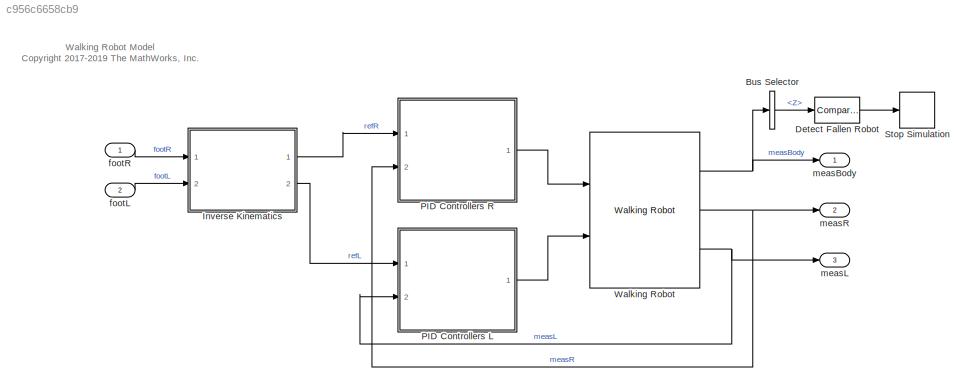
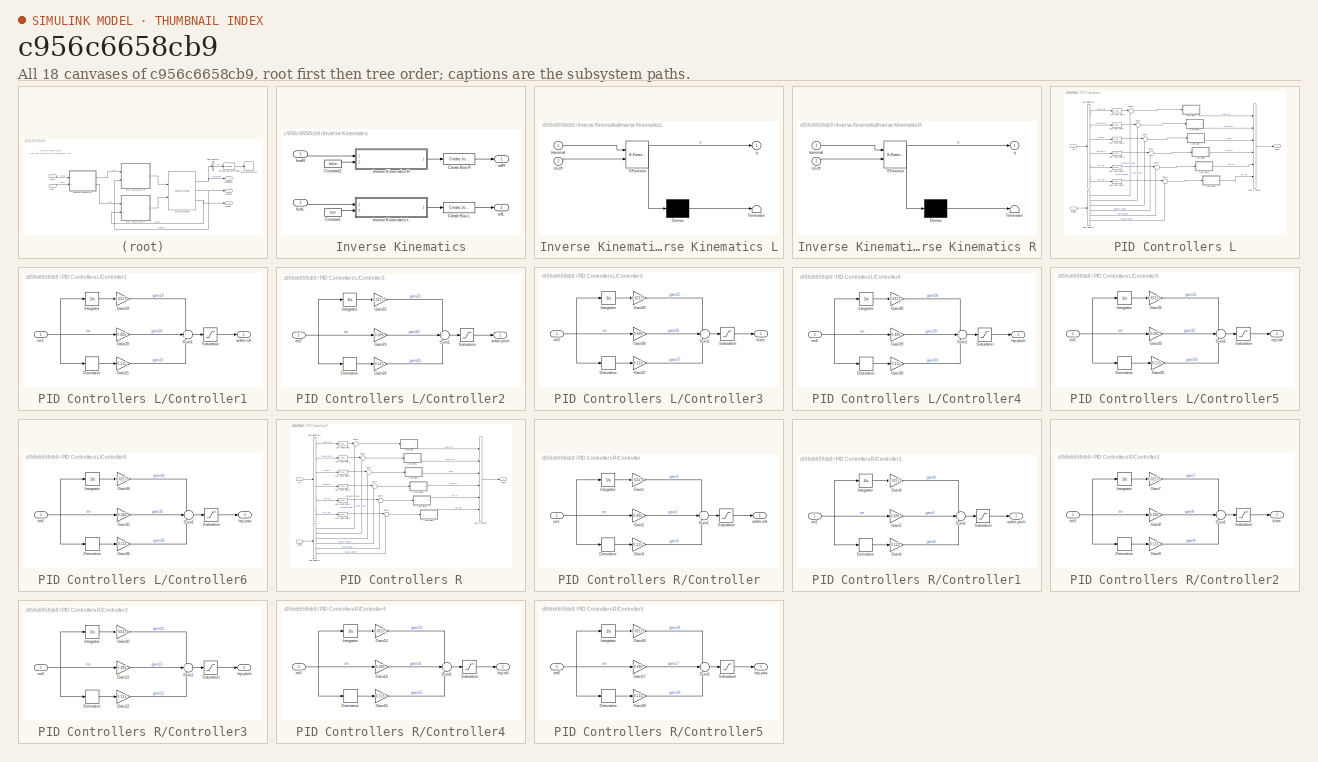
[diagram: thumbnail index - all 18 canvases of the model, root first then tree order]
MODEL slx_c956c6658cb9
KIND model
CONFIG AbsTol = auto
CONFIG EnableMultiTasking = off
CONFIG FixedStep = auto
CONFIG MaxStep = auto
CONFIG MinStep = auto
CONFIG PreLoadFcn = robotParameters\nload('defaultsimulationinputs.mat') 
CONFIG RelTol = 1e-3
CONFIG SampleTimeConstraint = Unconstrained
CONFIG Solver = VariableStepAuto
CONFIG SolverName = VariableStepAuto
CONFIG StartTime = 0.0
CONFIG StopTime = 10.0
BLOCK [BusSelector] Bus Selector
  OutputSignals = Z
  Ports = [1, 1]
BLOCK [Reference] Detect Fallen Robot  REF=simulink/Logic and Bit
Operations/Compare
To Constant
  Ports = [1, 1]
  SourceBlock = simulink/Logic and Bit\nOperations/Compare\nTo Constant
  SourceProductBaseCode = SL
  SourceType = Compare To Constant
BLOCK [SubSystem] Inverse Kinematics
  Ports = [2, 2]
  RequestExecContextInheritance = off
BLOCK [Constant] Inverse Kinematics/Constant
  Value = true
BLOCK [Constant] Inverse Kinematics/Constant2
  Value = false
BLOCK [Reference] Inverse Kinematics/Create Bus L  REF=walkingRobotUtils/Create Joint Angle Bus
  Ports = [1, 1]
  SourceBlock = walkingRobotUtils/Create Joint Angle Bus
  SourceType = SubSystem
BLOCK [Reference] Inverse Kinematics/Create Bus R  REF=walkingRobotUtils/Create Joint Angle Bus
  Ports = [1, 1]
  SourceBlock = walkingRobotUtils/Create Joint Angle Bus
  SourceType = SubSystem
BLOCK [SubSystem] Inverse Kinematics/Inverse Kinematics L
  ErrorFcn = Stateflow.Translate.translate
  PermitHierarchicalResolution = ExplicitOnly
  Ports = [2, 1]
  RequestExecContextInheritance = off
  SFBlockType = MATLAB Function
  TreatAsAtomicUnit = on
BLOCK [Demux] Inverse Kinematics/Inverse Kinematics L/ Demux 
  Outputs = 1
  Ports = [1, 1]
BLOCK [S-Function] Inverse Kinematics/Inverse Kinematics L/ SFunction 
  EnableBusSupport = on
  FunctionName = sf_sfun
  PortCounts = [2 2]
  Ports = [2, 2]
  SFcnIsStateOwnerBlock = off
  SFunctionDeploymentMode = off
  Tag = Stateflow S-Function 1
BLOCK [Terminator] Inverse Kinematics/Inverse Kinematics L/ Terminator 
BLOCK [Inport] Inverse Kinematics/Inverse Kinematics L/isLeft
  Port = 2
BLOCK [Outport] Inverse Kinematics/Inverse Kinematics L/q
BLOCK [Inport] Inverse Kinematics/Inverse Kinematics L/transmat
BLOCK [SubSystem] Inverse Kinematics/Inverse Kinematics R
  ErrorFcn = Stateflow.Translate.translate
  PermitHierarchicalResolution = ExplicitOnly
  Ports = [2, 1]
  RequestExecContextInheritance = off
  SFBlockType = MATLAB Function
  TreatAsAtomicUnit = on
BLOCK [Demux] Inverse Kinematics/Inverse Kinematics R/ Demux 
  Outputs = 1
  Ports = [1, 1]
BLOCK [S-Function] Inverse Kinematics/Inverse Kinematics R/ SFunction 
  EnableBusSupport = on
  FunctionName = sf_sfun
  PortCounts = [2 2]
  Ports = [2, 2]
  SFcnIsStateOwnerBlock = off
  SFunctionDeploymentMode = off
  Tag = Stateflow S-Function 2
BLOCK [Terminator] Inverse Kinematics/Inverse Kinematics R/ Terminator 
BLOCK [Inport] Inverse Kinematics/Inverse Kinematics R/isLeft
  Port = 2
BLOCK [Outport] Inverse Kinematics/Inverse Kinematics R/q
BLOCK [Inport] Inverse Kinematics/Inverse Kinematics R/transmat
BLOCK [Inport] Inverse Kinematics/footL
  Port = 2
BLOCK [Inport] Inverse Kinematics/footR
BLOCK [Outport] Inverse Kinematics/refL
  Port = 2
BLOCK [Outport] Inverse Kinematics/refR
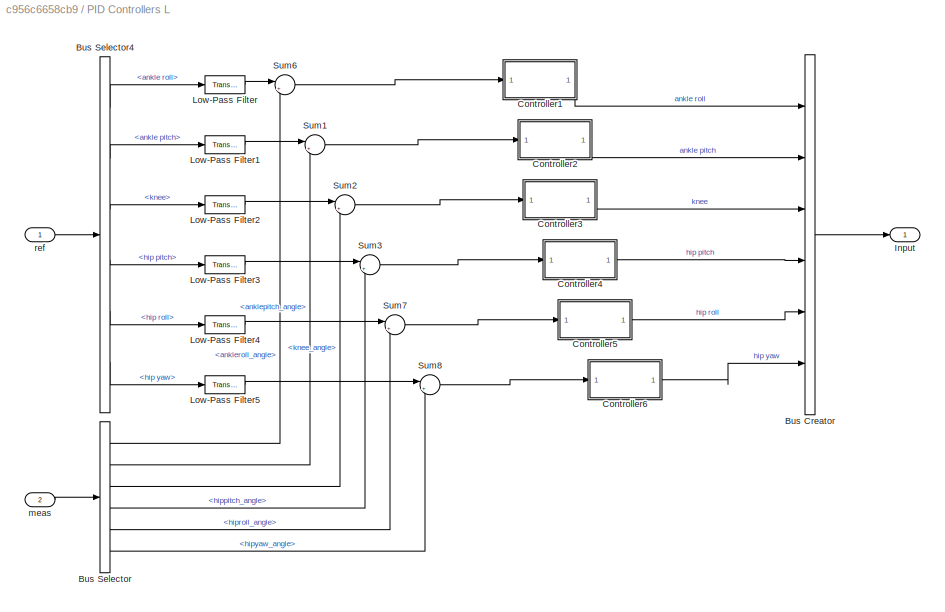
BLOCK [SubSystem] PID Controllers L
  Ports = [2, 1]
  RequestExecContextInheritance = off
BLOCK [BusCreator] PID Controllers L/Bus Creator
  DisplayOption = bar
  InheritFromInputs = on
  Inputs = 6
  Ports = [6, 1]
BLOCK [BusSelector] PID Controllers L/Bus Selector
  OutputSignals = ankleroll_angle,anklepitch_angle,knee_angle,hippitch_angle,hiproll_angle,hipyaw_angle
  Ports = [1, 6]
BLOCK [BusSelector] PID Controllers L/Bus Selector4
  OutputSignals = ankle roll,ankle pitch,knee,hip pitch,hip roll,hip yaw
  Ports = [1, 6]
BLOCK [SubSystem] PID Controllers L/Controller1
  Ports = [1, 1]
  RequestExecContextInheritance = off
BLOCK [Derivative] PID Controllers L/Controller1/Derivative
BLOCK [Gain] PID Controllers L/Controller1/Gain19
  Gain = 0.02175
BLOCK [Gain] PID Controllers L/Controller1/Gain20
  Gain = 0.495
BLOCK [Gain] PID Controllers L/Controller1/Gain21
  Gain = 0.115
BLOCK [Integrator] PID Controllers L/Controller1/Integrator
  Ports = [1, 1]
BLOCK [Saturate] PID Controllers L/Controller1/Saturation
  LowerLimit = -15
  UpperLimit = 15
BLOCK [Sum] PID Controllers L/Controller1/Sum1
  Inputs = +++
  Ports = [3, 1]
BLOCK [Outport] PID Controllers L/Controller1/ankle roll
BLOCK [Inport] PID Controllers L/Controller1/err1
BLOCK [SubSystem] PID Controllers L/Controller2
  Ports = [1, 1]
  RequestExecContextInheritance = off
BLOCK [Derivative] PID Controllers L/Controller2/Derivative
BLOCK [Gain] PID Controllers L/Controller2/Gain22
  Gain = 0.02175
BLOCK [Gain] PID Controllers L/Controller2/Gain23
  Gain = 0.495
BLOCK [Gain] PID Controllers L/Controller2/Gain24
  Gain = 0.115
BLOCK [Integrator] PID Controllers L/Controller2/Integrator
  Ports = [1, 1]
BLOCK [Saturate] PID Controllers L/Controller2/Saturation
  LowerLimit = -15
  UpperLimit = 15
BLOCK [Sum] PID Controllers L/Controller2/Sum1
  Inputs = +++
  Ports = [3, 1]
BLOCK [Outport] PID Controllers L/Controller2/ankle pitch
BLOCK [Inport] PID Controllers L/Controller2/err2
BLOCK [SubSystem] PID Controllers L/Controller3
  Ports = [1, 1]
  RequestExecContextInheritance = off
BLOCK [Derivative] PID Controllers L/Controller3/Derivative
BLOCK [Gain] PID Controllers L/Controller3/Gain25
  Gain = 0.02175
BLOCK [Gain] PID Controllers L/Controller3/Gain26
  Gain = 0.495
BLOCK [Gain] PID Controllers L/Controller3/Gain27
  Gain = 0.115
BLOCK [Integrator] PID Controllers L/Controller3/Integrator
  Ports = [1, 1]
BLOCK [Saturate] PID Controllers L/Controller3/Saturation
  LowerLimit = -15
  UpperLimit = 15
BLOCK [Sum] PID Controllers L/Controller3/Sum1
  Inputs = +++
  Ports = [3, 1]
BLOCK [Inport] PID Controllers L/Controller3/err3
BLOCK [Outport] PID Controllers L/Controller3/knee
BLOCK [SubSystem] PID Controllers L/Controller4
  Ports = [1, 1]
  RequestExecContextInheritance = off
BLOCK [Derivative] PID Controllers L/Controller4/Derivative
BLOCK [Gain] PID Controllers L/Controller4/Gain28
  Gain = 0.02175
BLOCK [Gain] PID Controllers L/Controller4/Gain29
  Gain = 0.495
BLOCK [Gain] PID Controllers L/Controller4/Gain30
  Gain = 0.115
BLOCK [Integrator] PID Controllers L/Controller4/Integrator
  Ports = [1, 1]
BLOCK [Saturate] PID Controllers L/Controller4/Saturation
  LowerLimit = -15
  UpperLimit = 15
BLOCK [Sum] PID Controllers L/Controller4/Sum1
  Inputs = +++
  Ports = [3, 1]
BLOCK [Inport] PID Controllers L/Controller4/err4
BLOCK [Outport] PID Controllers L/Controller4/hip pitch
BLOCK [SubSystem] PID Controllers L/Controller5
  Ports = [1, 1]
  RequestExecContextInheritance = off
BLOCK [Derivative] PID Controllers L/Controller5/Derivative
BLOCK [Gain] PID Controllers L/Controller5/Gain31
  Gain = 0.02175
BLOCK [Gain] PID Controllers L/Controller5/Gain32
  Gain = 0.495
BLOCK [Gain] PID Controllers L/Controller5/Gain33
  Gain = 0.115
BLOCK [Integrator] PID Controllers L/Controller5/Integrator
  Ports = [1, 1]
BLOCK [Saturate] PID Controllers L/Controller5/Saturation
  LowerLimit = -15
  UpperLimit = 15
BLOCK [Sum] PID Controllers L/Controller5/Sum1
  Inputs = +++
  Ports = [3, 1]
BLOCK [Inport] PID Controllers L/Controller5/err5
BLOCK [Outport] PID Controllers L/Controller5/hip roll
BLOCK [SubSystem] PID Controllers L/Controller6
  Ports = [1, 1]
  RequestExecContextInheritance = off
BLOCK [Derivative] PID Controllers L/Controller6/Derivative
BLOCK [Gain] PID Controllers L/Controller6/Gain34
  Gain = 0.02175
BLOCK [Gain] PID Controllers L/Controller6/Gain35
  Gain = 0.495
BLOCK [Gain] PID Controllers L/Controller6/Gain36
  Gain = 0.115
BLOCK [Integrator] PID Controllers L/Controller6/Integrator
  Ports = [1, 1]
BLOCK [Saturate] PID Controllers L/Controller6/Saturation
  LowerLimit = -15
  UpperLimit = 15
BLOCK [Sum] PID Controllers L/Controller6/Sum1
  Inputs = +++
  Ports = [3, 1]
BLOCK [Inport] PID Controllers L/Controller6/err6
BLOCK [Outport] PID Controllers L/Controller6/hip yaw
BLOCK [Outport] PID Controllers L/Input
  VectorParamsAs1DForOutWhenUnconnected = off
BLOCK [Reference] PID Controllers L/Low-Pass Filter  REF=simulink_extras/Additional
Linear/Transfer Fcn
(with initial outputs)
  Ports = [1, 1]
  SourceBlock = simulink_extras/Additional\nLinear/Transfer Fcn\n(with initial outputs)
  SourceProductBaseCode = SL
  SourceType = Transfer Function with Initial Outputs
BLOCK [Reference] PID Controllers L/Low-Pass Filter1  REF=simulink_extras/Additional
Linear/Transfer Fcn
(with initial outputs)
  Ports = [1, 1]
  SourceBlock = simulink_extras/Additional\nLinear/Transfer Fcn\n(with initial outputs)
  SourceProductBaseCode = SL
  SourceType = Transfer Function with Initial Outputs
BLOCK [Reference] PID Controllers L/Low-Pass Filter2  REF=simulink_extras/Additional
Linear/Transfer Fcn
(with initial outputs)
  Ports = [1, 1]
  SourceBlock = simulink_extras/Additional\nLinear/Transfer Fcn\n(with initial outputs)
  SourceProductBaseCode = SL
  SourceType = Transfer Function with Initial Outputs
BLOCK [Reference] PID Controllers L/Low-Pass Filter3  REF=simulink_extras/Additional
Linear/Transfer Fcn
(with initial outputs)
  Ports = [1, 1]
  SourceBlock = simulink_extras/Additional\nLinear/Transfer Fcn\n(with initial outputs)
  SourceProductBaseCode = SL
  SourceType = Transfer Function with Initial Outputs
BLOCK [Reference] PID Controllers L/Low-Pass Filter4  REF=simulink_extras/Additional
Linear/Transfer Fcn
(with initial outputs)
  Ports = [1, 1]
  SourceBlock = simulink_extras/Additional\nLinear/Transfer Fcn\n(with initial outputs)
  SourceProductBaseCode = SL
  SourceType = Transfer Function with Initial Outputs
BLOCK [Reference] PID Controllers L/Low-Pass Filter5  REF=simulink_extras/Additional
Linear/Transfer Fcn
(with initial outputs)
  Ports = [1, 1]
  SourceBlock = simulink_extras/Additional\nLinear/Transfer Fcn\n(with initial outputs)
  SourceProductBaseCode = SL
  SourceType = Transfer Function with Initial Outputs
BLOCK [Sum] PID Controllers L/Sum1
  Inputs = |+-
  Ports = [2, 1]
BLOCK [Sum] PID Controllers L/Sum2
  Inputs = |+-
  Ports = [2, 1]
BLOCK [Sum] PID Controllers L/Sum3
  Inputs = |+-
  Ports = [2, 1]
BLOCK [Sum] PID Controllers L/Sum6
  Inputs = |+-
  Ports = [2, 1]
BLOCK [Sum] PID Controllers L/Sum7
  Inputs = |+-
  Ports = [2, 1]
BLOCK [Sum] PID Controllers L/Sum8
  Inputs = |+-
  Ports = [2, 1]
BLOCK [Inport] PID Controllers L/meas
  Port = 2
BLOCK [Inport] PID Controllers L/ref
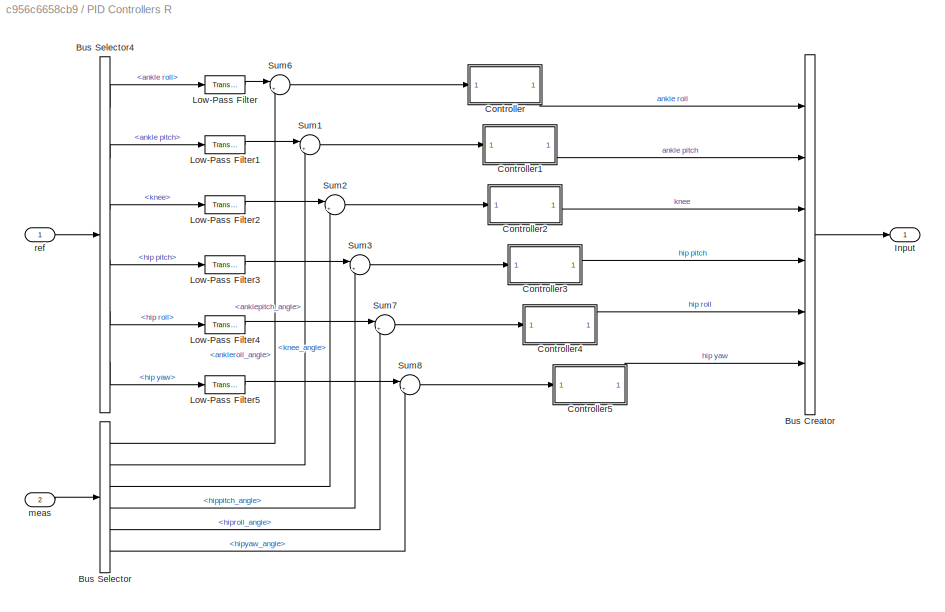
BLOCK [SubSystem] PID Controllers R
  Ports = [2, 1]
  RequestExecContextInheritance = off
BLOCK [BusCreator] PID Controllers R/Bus Creator
  DisplayOption = bar
  InheritFromInputs = on
  Inputs = 6
  Ports = [6, 1]
BLOCK [BusSelector] PID Controllers R/Bus Selector
  OutputSignals = ankleroll_angle,anklepitch_angle,knee_angle,hippitch_angle,hiproll_angle,hipyaw_angle
  Ports = [1, 6]
BLOCK [BusSelector] PID Controllers R/Bus Selector4
  OutputSignals = ankle roll,ankle pitch,knee,hip pitch,hip roll,hip yaw
  Ports = [1, 6]
BLOCK [SubSystem] PID Controllers R/Controller
  Ports = [1, 1]
  RequestExecContextInheritance = off
BLOCK [Derivative] PID Controllers R/Controller/Derivative
BLOCK [Gain] PID Controllers R/Controller/Gain1
  Gain = 0.02175
BLOCK [Gain] PID Controllers R/Controller/Gain2
  Gain = 0.495
BLOCK [Gain] PID Controllers R/Controller/Gain3
  Gain = 0.115
BLOCK [Integrator] PID Controllers R/Controller/Integrator
  Ports = [1, 1]
BLOCK [Saturate] PID Controllers R/Controller/Saturation
  LowerLimit = -15
  UpperLimit = 15
BLOCK [Sum] PID Controllers R/Controller/Sum1
  Inputs = +++
  Ports = [3, 1]
BLOCK [Outport] PID Controllers R/Controller/ankle roll
BLOCK [Inport] PID Controllers R/Controller/err1
BLOCK [SubSystem] PID Controllers R/Controller1
  Ports = [1, 1]
  RequestExecContextInheritance = off
BLOCK [Derivative] PID Controllers R/Controller1/Derivative
BLOCK [Gain] PID Controllers R/Controller1/Gain4
  Gain = 0.02175
BLOCK [Gain] PID Controllers R/Controller1/Gain5
  Gain = 0.495
BLOCK [Gain] PID Controllers R/Controller1/Gain6
  Gain = 0.115
BLOCK [Integrator] PID Controllers R/Controller1/Integrator
  Ports = [1, 1]
BLOCK [Saturate] PID Controllers R/Controller1/Saturation
  LowerLimit = -15
  UpperLimit = 15
BLOCK [Sum] PID Controllers R/Controller1/Sum1
  Inputs = +++
  Ports = [3, 1]
BLOCK [Outport] PID Controllers R/Controller1/ankle pitch
BLOCK [Inport] PID Controllers R/Controller1/err2
BLOCK [SubSystem] PID Controllers R/Controller2
  Ports = [1, 1]
  RequestExecContextInheritance = off
BLOCK [Derivative] PID Controllers R/Controller2/Derivative
BLOCK [Gain] PID Controllers R/Controller2/Gain7
  Gain = 0.02175
BLOCK [Gain] PID Controllers R/Controller2/Gain8
  Gain = 0.495
BLOCK [Gain] PID Controllers R/Controller2/Gain9
  Gain = 0.115
BLOCK [Integrator] PID Controllers R/Controller2/Integrator
  Ports = [1, 1]
BLOCK [Saturate] PID Controllers R/Controller2/Saturation
  LowerLimit = -15
  UpperLimit = 15
BLOCK [Sum] PID Controllers R/Controller2/Sum1
  Inputs = +++
  Ports = [3, 1]
BLOCK [Inport] PID Controllers R/Controller2/err3
BLOCK [Outport] PID Controllers R/Controller2/knee
BLOCK [SubSystem] PID Controllers R/Controller3
  Ports = [1, 1]
  RequestExecContextInheritance = off
BLOCK [Derivative] PID Controllers R/Controller3/Derivative
BLOCK [Gain] PID Controllers R/Controller3/Gain10
  Gain = 0.02175
BLOCK [Gain] PID Controllers R/Controller3/Gain11
  Gain = 0.495
BLOCK [Gain] PID Controllers R/Controller3/Gain12
  Gain = 0.115
BLOCK [Integrator] PID Controllers R/Controller3/Integrator
  Ports = [1, 1]
BLOCK [Saturate] PID Controllers R/Controller3/Saturation
  LowerLimit = -15
  UpperLimit = 15
BLOCK [Sum] PID Controllers R/Controller3/Sum1
  Inputs = +++
  Ports = [3, 1]
BLOCK [Inport] PID Controllers R/Controller3/err4
BLOCK [Outport] PID Controllers R/Controller3/hip pitch
BLOCK [SubSystem] PID Controllers R/Controller4
  Ports = [1, 1]
  RequestExecContextInheritance = off
BLOCK [Derivative] PID Controllers R/Controller4/Derivative
BLOCK [Gain] PID Controllers R/Controller4/Gain13
  Gain = 0.02175
BLOCK [Gain] PID Controllers R/Controller4/Gain14
  Gain = 0.495
BLOCK [Gain] PID Controllers R/Controller4/Gain15
  Gain = 0.115
BLOCK [Integrator] PID Controllers R/Controller4/Integrator
  Ports = [1, 1]
BLOCK [Saturate] PID Controllers R/Controller4/Saturation
  LowerLimit = -15
  UpperLimit = 15
BLOCK [Sum] PID Controllers R/Controller4/Sum1
  Inputs = +++
  Ports = [3, 1]
BLOCK [Inport] PID Controllers R/Controller4/err5
BLOCK [Outport] PID Controllers R/Controller4/hip roll
BLOCK [SubSystem] PID Controllers R/Controller5
  Ports = [1, 1]
  RequestExecContextInheritance = off
BLOCK [Derivative] PID Controllers R/Controller5/Derivative
BLOCK [Gain] PID Controllers R/Controller5/Gain16
  Gain = 0.02175
BLOCK [Gain] PID Controllers R/Controller5/Gain17
  Gain = 0.495
BLOCK [Gain] PID Controllers R/Controller5/Gain18
  Gain = 0.115
BLOCK [Integrator] PID Controllers R/Controller5/Integrator
  Ports = [1, 1]
BLOCK [Saturate] PID Controllers R/Controller5/Saturation
  LowerLimit = -15
  UpperLimit = 15
BLOCK [Sum] PID Controllers R/Controller5/Sum1
  Inputs = +++
  Ports = [3, 1]
BLOCK [Inport] PID Controllers R/Controller5/err6
BLOCK [Outport] PID Controllers R/Controller5/hip yaw
BLOCK [Outport] PID Controllers R/Input
  VectorParamsAs1DForOutWhenUnconnected = off
BLOCK [Reference] PID Controllers R/Low-Pass Filter  REF=simulink_extras/Additional
Linear/Transfer Fcn
(with initial outputs)
  Ports = [1, 1]
  SourceBlock = simulink_extras/Additional\nLinear/Transfer Fcn\n(with initial outputs)
  SourceProductBaseCode = SL
  SourceType = Transfer Function with Initial Outputs
BLOCK [Reference] PID Controllers R/Low-Pass Filter1  REF=simulink_extras/Additional
Linear/Transfer Fcn
(with initial outputs)
  Ports = [1, 1]
  SourceBlock = simulink_extras/Additional\nLinear/Transfer Fcn\n(with initial outputs)
  SourceProductBaseCode = SL
  SourceType = Transfer Function with Initial Outputs
BLOCK [Reference] PID Controllers R/Low-Pass Filter2  REF=simulink_extras/Additional
Linear/Transfer Fcn
(with initial outputs)
  Ports = [1, 1]
  SourceBlock = simulink_extras/Additional\nLinear/Transfer Fcn\n(with initial outputs)
  SourceProductBaseCode = SL
  SourceType = Transfer Function with Initial Outputs
BLOCK [Reference] PID Controllers R/Low-Pass Filter3  REF=simulink_extras/Additional
Linear/Transfer Fcn
(with initial outputs)
  Ports = [1, 1]
  SourceBlock = simulink_extras/Additional\nLinear/Transfer Fcn\n(with initial outputs)
  SourceProductBaseCode = SL
  SourceType = Transfer Function with Initial Outputs
BLOCK [Reference] PID Controllers R/Low-Pass Filter4  REF=simulink_extras/Additional
Linear/Transfer Fcn
(with initial outputs)
  Ports = [1, 1]
  SourceBlock = simulink_extras/Additional\nLinear/Transfer Fcn\n(with initial outputs)
  SourceProductBaseCode = SL
  SourceType = Transfer Function with Initial Outputs
BLOCK [Reference] PID Controllers R/Low-Pass Filter5  REF=simulink_extras/Additional
Linear/Transfer Fcn
(with initial outputs)
  Ports = [1, 1]
  SourceBlock = simulink_extras/Additional\nLinear/Transfer Fcn\n(with initial outputs)
  SourceProductBaseCode = SL
  SourceType = Transfer Function with Initial Outputs
BLOCK [Sum] PID Controllers R/Sum1
  Inputs = |+-
  Ports = [2, 1]
BLOCK [Sum] PID Controllers R/Sum2
  Inputs = |+-
  Ports = [2, 1]
BLOCK [Sum] PID Controllers R/Sum3
  Inputs = |+-
  Ports = [2, 1]
BLOCK [Sum] PID Controllers R/Sum6
  Inputs = |+-
  Ports = [2, 1]
BLOCK [Sum] PID Controllers R/Sum7
  Inputs = |+-
  Ports = [2, 1]
BLOCK [Sum] PID Controllers R/Sum8
  Inputs = |+-
  Ports = [2, 1]
BLOCK [Inport] PID Controllers R/meas
  Port = 2
BLOCK [Inport] PID Controllers R/ref
BLOCK [Stop] Stop Simulation
BLOCK [Reference] Walking Robot  REF=walkingRobotUtils/Walking Robot
  Ports = [2, 3]
  SourceBlock = walkingRobotUtils/Walking Robot
  SourceType = SubSystem
BLOCK [Inport] footL
  Port = 2
BLOCK [Inport] footR
BLOCK [Outport] measBody
  VectorParamsAs1DForOutWhenUnconnected = off
BLOCK [Outport] measL
  Port = 3
  VectorParamsAs1DForOutWhenUnconnected = off
BLOCK [Outport] measR
  Port = 2
  VectorParamsAs1DForOutWhenUnconnected = off
ANNOTATION (root): Walking Robot Model <copyright redacted>
LINE Bus Selector:1 -> Detect Fallen Robot:1
LINE Detect Fallen Robot:1 -> Stop Simulation:1
LINE Inverse Kinematics/Constant2:1 -> Inverse Kinematics/Inverse Kinematics R:2
LINE Inverse Kinematics/Constant:1 -> Inverse Kinematics/Inverse Kinematics L:2
LINE Inverse Kinematics/Create Bus L:1 -> Inverse Kinematics/refL:1
LINE Inverse Kinematics/Create Bus R:1 -> Inverse Kinematics/refR:1
LINE Inverse Kinematics/Inverse Kinematics L:1 -> Inverse Kinematics/Create Bus L:1
LINE Inverse Kinematics/Inverse Kinematics R:1 -> Inverse Kinematics/Create Bus R:1
LINE Inverse Kinematics/footL:1 -> Inverse Kinematics/Inverse Kinematics L:1
LINE Inverse Kinematics/footR:1 -> Inverse Kinematics/Inverse Kinematics R:1
LINE Inverse Kinematics:1 -> PID Controllers R:1
LINE Inverse Kinematics:2 -> PID Controllers L:1
LINE PID Controllers L/Bus Creator:1 -> PID Controllers L/Input:1
LINE PID Controllers L/Bus Selector4:1 -> PID Controllers L/Low-Pass Filter:1
LINE PID Controllers L/Bus Selector4:2 -> PID Controllers L/Low-Pass Filter1:1
LINE PID Controllers L/Bus Selector4:3 -> PID Controllers L/Low-Pass Filter2:1
LINE PID Controllers L/Bus Selector4:4 -> PID Controllers L/Low-Pass Filter3:1
LINE PID Controllers L/Bus Selector4:5 -> PID Controllers L/Low-Pass Filter4:1
LINE PID Controllers L/Bus Selector4:6 -> PID Controllers L/Low-Pass Filter5:1
LINE PID Controllers L/Bus Selector:1 -> PID Controllers L/Sum6:2
LINE PID Controllers L/Bus Selector:2 -> PID Controllers L/Sum1:2
LINE PID Controllers L/Bus Selector:3 -> PID Controllers L/Sum2:2
LINE PID Controllers L/Bus Selector:4 -> PID Controllers L/Sum3:2
LINE PID Controllers L/Bus Selector:5 -> PID Controllers L/Sum7:2
LINE PID Controllers L/Bus Selector:6 -> PID Controllers L/Sum8:2
LINE PID Controllers L/Controller1/Derivative:1 -> PID Controllers L/Controller1/Gain21:1
LINE PID Controllers L/Controller1/Gain19:1 -> PID Controllers L/Controller1/Sum1:1
LINE PID Controllers L/Controller1/Gain20:1 -> PID Controllers L/Controller1/Sum1:2
LINE PID Controllers L/Controller1/Gain21:1 -> PID Controllers L/Controller1/Sum1:3
LINE PID Controllers L/Controller1/Integrator:1 -> PID Controllers L/Controller1/Gain19:1
LINE PID Controllers L/Controller1/Saturation:1 -> PID Controllers L/Controller1/ankle roll:1
LINE PID Controllers L/Controller1/Sum1:1 -> PID Controllers L/Controller1/Saturation:1
NET PID Controllers L/Controller1/err1:1 -> PID Controllers L/Controller1/Derivative:1, PID Controllers L/Controller1/Gain20:1, PID Controllers L/Controller1/Integrator:1
LINE PID Controllers L/Controller1:1 -> PID Controllers L/Bus Creator:1
LINE PID Controllers L/Controller2/Derivative:1 -> PID Controllers L/Controller2/Gain24:1
LINE PID Controllers L/Controller2/Gain22:1 -> PID Controllers L/Controller2/Sum1:1
LINE PID Controllers L/Controller2/Gain23:1 -> PID Controllers L/Controller2/Sum1:2
LINE PID Controllers L/Controller2/Gain24:1 -> PID Controllers L/Controller2/Sum1:3
LINE PID Controllers L/Controller2/Integrator:1 -> PID Controllers L/Controller2/Gain22:1
LINE PID Controllers L/Controller2/Saturation:1 -> PID Controllers L/Controller2/ankle pitch:1
LINE PID Controllers L/Controller2/Sum1:1 -> PID Controllers L/Controller2/Saturation:1
NET PID Controllers L/Controller2/err2:1 -> PID Controllers L/Controller2/Derivative:1, PID Controllers L/Controller2/Gain23:1, PID Controllers L/Controller2/Integrator:1
LINE PID Controllers L/Controller2:1 -> PID Controllers L/Bus Creator:2
LINE PID Controllers L/Controller3/Derivative:1 -> PID Controllers L/Controller3/Gain27:1
LINE PID Controllers L/Controller3/Gain25:1 -> PID Controllers L/Controller3/Sum1:1
LINE PID Controllers L/Controller3/Gain26:1 -> PID Controllers L/Controller3/Sum1:2
LINE PID Controllers L/Controller3/Gain27:1 -> PID Controllers L/Controller3/Sum1:3
LINE PID Controllers L/Controller3/Integrator:1 -> PID Controllers L/Controller3/Gain25:1
LINE PID Controllers L/Controller3/Saturation:1 -> PID Controllers L/Controller3/knee:1
LINE PID Controllers L/Controller3/Sum1:1 -> PID Controllers L/Controller3/Saturation:1
NET PID Controllers L/Controller3/err3:1 -> PID Controllers L/Controller3/Derivative:1, PID Controllers L/Controller3/Gain26:1, PID Controllers L/Controller3/Integrator:1
LINE PID Controllers L/Controller3:1 -> PID Controllers L/Bus Creator:3
LINE PID Controllers L/Controller4/Derivative:1 -> PID Controllers L/Controller4/Gain30:1
LINE PID Controllers L/Controller4/Gain28:1 -> PID Controllers L/Controller4/Sum1:1
LINE PID Controllers L/Controller4/Gain29:1 -> PID Controllers L/Controller4/Sum1:2
LINE PID Controllers L/Controller4/Gain30:1 -> PID Controllers L/Controller4/Sum1:3
LINE PID Controllers L/Controller4/Integrator:1 -> PID Controllers L/Controller4/Gain28:1
LINE PID Controllers L/Controller4/Saturation:1 -> PID Controllers L/Controller4/hip pitch:1
LINE PID Controllers L/Controller4/Sum1:1 -> PID Controllers L/Controller4/Saturation:1
NET PID Controllers L/Controller4/err4:1 -> PID Controllers L/Controller4/Derivative:1, PID Controllers L/Controller4/Gain29:1, PID Controllers L/Controller4/Integrator:1
LINE PID Controllers L/Controller4:1 -> PID Controllers L/Bus Creator:4
LINE PID Controllers L/Controller5/Derivative:1 -> PID Controllers L/Controller5/Gain33:1
LINE PID Controllers L/Controller5/Gain31:1 -> PID Controllers L/Controller5/Sum1:1
LINE PID Controllers L/Controller5/Gain32:1 -> PID Controllers L/Controller5/Sum1:2
LINE PID Controllers L/Controller5/Gain33:1 -> PID Controllers L/Controller5/Sum1:3
LINE PID Controllers L/Controller5/Integrator:1 -> PID Controllers L/Controller5/Gain31:1
LINE PID Controllers L/Controller5/Saturation:1 -> PID Controllers L/Controller5/hip roll:1
LINE PID Controllers L/Controller5/Sum1:1 -> PID Controllers L/Controller5/Saturation:1
NET PID Controllers L/Controller5/err5:1 -> PID Controllers L/Controller5/Derivative:1, PID Controllers L/Controller5/Gain32:1, PID Controllers L/Controller5/Integrator:1
LINE PID Controllers L/Controller5:1 -> PID Controllers L/Bus Creator:5
LINE PID Controllers L/Controller6/Derivative:1 -> PID Controllers L/Controller6/Gain36:1
LINE PID Controllers L/Controller6/Gain34:1 -> PID Controllers L/Controller6/Sum1:1
LINE PID Controllers L/Controller6/Gain35:1 -> PID Controllers L/Controller6/Sum1:2
LINE PID Controllers L/Controller6/Gain36:1 -> PID Controllers L/Controller6/Sum1:3
LINE PID Controllers L/Controller6/Integrator:1 -> PID Controllers L/Controller6/Gain34:1
LINE PID Controllers L/Controller6/Saturation:1 -> PID Controllers L/Controller6/hip yaw:1
LINE PID Controllers L/Controller6/Sum1:1 -> PID Controllers L/Controller6/Saturation:1
NET PID Controllers L/Controller6/err6:1 -> PID Controllers L/Controller6/Derivative:1, PID Controllers L/Controller6/Gain35:1, PID Controllers L/Controller6/Integrator:1
LINE PID Controllers L/Controller6:1 -> PID Controllers L/Bus Creator:6
LINE PID Controllers L/Low-Pass Filter1:1 -> PID Controllers L/Sum1:1
LINE PID Controllers L/Low-Pass Filter2:1 -> PID Controllers L/Sum2:1
LINE PID Controllers L/Low-Pass Filter3:1 -> PID Controllers L/Sum3:1
LINE PID Controllers L/Low-Pass Filter4:1 -> PID Controllers L/Sum7:1
LINE PID Controllers L/Low-Pass Filter5:1 -> PID Controllers L/Sum8:1
LINE PID Controllers L/Low-Pass Filter:1 -> PID Controllers L/Sum6:1
LINE PID Controllers L/Sum1:1 -> PID Controllers L/Controller2:1
LINE PID Controllers L/Sum2:1 -> PID Controllers L/Controller3:1
LINE PID Controllers L/Sum3:1 -> PID Controllers L/Controller4:1
LINE PID Controllers L/Sum6:1 -> PID Controllers L/Controller1:1
LINE PID Controllers L/Sum7:1 -> PID Controllers L/Controller5:1
LINE PID Controllers L/Sum8:1 -> PID Controllers L/Controller6:1
LINE PID Controllers L/meas:1 -> PID Controllers L/Bus Selector:1
LINE PID Controllers L/ref:1 -> PID Controllers L/Bus Selector4:1
LINE PID Controllers L:1 -> Walking Robot:2
LINE PID Controllers R/Bus Creator:1 -> PID Controllers R/Input:1
LINE PID Controllers R/Bus Selector4:1 -> PID Controllers R/Low-Pass Filter:1
LINE PID Controllers R/Bus Selector4:2 -> PID Controllers R/Low-Pass Filter1:1
LINE PID Controllers R/Bus Selector4:3 -> PID Controllers R/Low-Pass Filter2:1
LINE PID Controllers R/Bus Selector4:4 -> PID Controllers R/Low-Pass Filter3:1
LINE PID Controllers R/Bus Selector4:5 -> PID Controllers R/Low-Pass Filter4:1
LINE PID Controllers R/Bus Selector4:6 -> PID Controllers R/Low-Pass Filter5:1
LINE PID Controllers R/Bus Selector:1 -> PID Controllers R/Sum6:2
LINE PID Controllers R/Bus Selector:2 -> PID Controllers R/Sum1:2
LINE PID Controllers R/Bus Selector:3 -> PID Controllers R/Sum2:2
LINE PID Controllers R/Bus Selector:4 -> PID Controllers R/Sum3:2
LINE PID Controllers R/Bus Selector:5 -> PID Controllers R/Sum7:2
LINE PID Controllers R/Bus Selector:6 -> PID Controllers R/Sum8:2
LINE PID Controllers R/Controller/Derivative:1 -> PID Controllers R/Controller/Gain3:1
LINE PID Controllers R/Controller/Gain1:1 -> PID Controllers R/Controller/Sum1:1
LINE PID Controllers R/Controller/Gain2:1 -> PID Controllers R/Controller/Sum1:2
LINE PID Controllers R/Controller/Gain3:1 -> PID Controllers R/Controller/Sum1:3
LINE PID Controllers R/Controller/Integrator:1 -> PID Controllers R/Controller/Gain1:1
LINE PID Controllers R/Controller/Saturation:1 -> PID Controllers R/Controller/ankle roll:1
LINE PID Controllers R/Controller/Sum1:1 -> PID Controllers R/Controller/Saturation:1
NET PID Controllers R/Controller/err1:1 -> PID Controllers R/Controller/Derivative:1, PID Controllers R/Controller/Gain2:1, PID Controllers R/Controller/Integrator:1
LINE PID Controllers R/Controller1/Derivative:1 -> PID Controllers R/Controller1/Gain6:1
LINE PID Controllers R/Controller1/Gain4:1 -> PID Controllers R/Controller1/Sum1:1
LINE PID Controllers R/Controller1/Gain5:1 -> PID Controllers R/Controller1/Sum1:2
LINE PID Controllers R/Controller1/Gain6:1 -> PID Controllers R/Controller1/Sum1:3
LINE PID Controllers R/Controller1/Integrator:1 -> PID Controllers R/Controller1/Gain4:1
LINE PID Controllers R/Controller1/Saturation:1 -> PID Controllers R/Controller1/ankle pitch:1
LINE PID Controllers R/Controller1/Sum1:1 -> PID Controllers R/Controller1/Saturation:1
NET PID Controllers R/Controller1/err2:1 -> PID Controllers R/Controller1/Derivative:1, PID Controllers R/Controller1/Gain5:1, PID Controllers R/Controller1/Integrator:1
LINE PID Controllers R/Controller1:1 -> PID Controllers R/Bus Creator:2
LINE PID Controllers R/Controller2/Derivative:1 -> PID Controllers R/Controller2/Gain9:1
LINE PID Controllers R/Controller2/Gain7:1 -> PID Controllers R/Controller2/Sum1:1
LINE PID Controllers R/Controller2/Gain8:1 -> PID Controllers R/Controller2/Sum1:2
LINE PID Controllers R/Controller2/Gain9:1 -> PID Controllers R/Controller2/Sum1:3
LINE PID Controllers R/Controller2/Integrator:1 -> PID Controllers R/Controller2/Gain7:1
LINE PID Controllers R/Controller2/Saturation:1 -> PID Controllers R/Controller2/knee:1
LINE PID Controllers R/Controller2/Sum1:1 -> PID Controllers R/Controller2/Saturation:1
NET PID Controllers R/Controller2/err3:1 -> PID Controllers R/Controller2/Derivative:1, PID Controllers R/Controller2/Gain8:1, PID Controllers R/Controller2/Integrator:1
LINE PID Controllers R/Controller2:1 -> PID Controllers R/Bus Creator:3
LINE PID Controllers R/Controller3/Derivative:1 -> PID Controllers R/Controller3/Gain12:1
LINE PID Controllers R/Controller3/Gain10:1 -> PID Controllers R/Controller3/Sum1:1
LINE PID Controllers R/Controller3/Gain11:1 -> PID Controllers R/Controller3/Sum1:2
LINE PID Controllers R/Controller3/Gain12:1 -> PID Controllers R/Controller3/Sum1:3
LINE PID Controllers R/Controller3/Integrator:1 -> PID Controllers R/Controller3/Gain10:1
LINE PID Controllers R/Controller3/Saturation:1 -> PID Controllers R/Controller3/hip pitch:1
LINE PID Controllers R/Controller3/Sum1:1 -> PID Controllers R/Controller3/Saturation:1
NET PID Controllers R/Controller3/err4:1 -> PID Controllers R/Controller3/Derivative:1, PID Controllers R/Controller3/Gain11:1, PID Controllers R/Controller3/Integrator:1
LINE PID Controllers R/Controller3:1 -> PID Controllers R/Bus Creator:4
LINE PID Controllers R/Controller4/Derivative:1 -> PID Controllers R/Controller4/Gain15:1
LINE PID Controllers R/Controller4/Gain13:1 -> PID Controllers R/Controller4/Sum1:1
LINE PID Controllers R/Controller4/Gain14:1 -> PID Controllers R/Controller4/Sum1:2
LINE PID Controllers R/Controller4/Gain15:1 -> PID Controllers R/Controller4/Sum1:3
LINE PID Controllers R/Controller4/Integrator:1 -> PID Controllers R/Controller4/Gain13:1
LINE PID Controllers R/Controller4/Saturation:1 -> PID Controllers R/Controller4/hip roll:1
LINE PID Controllers R/Controller4/Sum1:1 -> PID Controllers R/Controller4/Saturation:1
NET PID Controllers R/Controller4/err5:1 -> PID Controllers R/Controller4/Derivative:1, PID Controllers R/Controller4/Gain14:1, PID Controllers R/Controller4/Integrator:1
LINE PID Controllers R/Controller4:1 -> PID Controllers R/Bus Creator:5
LINE PID Controllers R/Controller5/Derivative:1 -> PID Controllers R/Controller5/Gain18:1
LINE PID Controllers R/Controller5/Gain16:1 -> PID Controllers R/Controller5/Sum1:1
LINE PID Controllers R/Controller5/Gain17:1 -> PID Controllers R/Controller5/Sum1:2
LINE PID Controllers R/Controller5/Gain18:1 -> PID Controllers R/Controller5/Sum1:3
LINE PID Controllers R/Controller5/Integrator:1 -> PID Controllers R/Controller5/Gain16:1
LINE PID Controllers R/Controller5/Saturation:1 -> PID Controllers R/Controller5/hip yaw:1
LINE PID Controllers R/Controller5/Sum1:1 -> PID Controllers R/Controller5/Saturation:1
NET PID Controllers R/Controller5/err6:1 -> PID Controllers R/Controller5/Derivative:1, PID Controllers R/Controller5/Gain17:1, PID Controllers R/Controller5/Integrator:1
LINE PID Controllers R/Controller5:1 -> PID Controllers R/Bus Creator:6
LINE PID Controllers R/Controller:1 -> PID Controllers R/Bus Creator:1
LINE PID Controllers R/Low-Pass Filter1:1 -> PID Controllers R/Sum1:1
LINE PID Controllers R/Low-Pass Filter2:1 -> PID Controllers R/Sum2:1
LINE PID Controllers R/Low-Pass Filter3:1 -> PID Controllers R/Sum3:1
LINE PID Controllers R/Low-Pass Filter4:1 -> PID Controllers R/Sum7:1
LINE PID Controllers R/Low-Pass Filter5:1 -> PID Controllers R/Sum8:1
LINE PID Controllers R/Low-Pass Filter:1 -> PID Controllers R/Sum6:1
LINE PID Controllers R/Sum1:1 -> PID Controllers R/Controller1:1
LINE PID Controllers R/Sum2:1 -> PID Controllers R/Controller2:1
LINE PID Controllers R/Sum3:1 -> PID Controllers R/Controller3:1
LINE PID Controllers R/Sum6:1 -> PID Controllers R/Controller:1
LINE PID Controllers R/Sum7:1 -> PID Controllers R/Controller4:1
LINE PID Controllers R/Sum8:1 -> PID Controllers R/Controller5:1
LINE PID Controllers R/meas:1 -> PID Controllers R/Bus Selector:1
LINE PID Controllers R/ref:1 -> PID Controllers R/Bus Selector4:1
LINE PID Controllers R:1 -> Walking Robot:1
NET Walking Robot:1 -> Bus Selector:1, measBody:1
NET Walking Robot:2 -> PID Controllers R:2, measR:1
NET Walking Robot:3 -> PID Controllers L:2, measL:1
LINE footL:1 -> Inverse Kinematics:2
LINE footR:1 -> Inverse Kinematics:1
note: NET lines group one-source signal fan-out (src -> all destinations, sorted); 1:1 wires keep LINE
CHART Inverse Kinematics/Inverse Kinematics R states=1 transitions=1
  STATE_LABEL 'eML_blk_kernel()'
  STATE_LABEL 'SCRIPT:\nfunction q = inverseKinematics(transmat, isLeft)\nq = invKinBody2Foot(transmat, isLeft); \n\n'
CHART Inverse Kinematics/Inverse Kinematics L states=1 transitions=1
  STATE_LABEL 'eML_blk_kernel()'
  STATE_LABEL 'SCRIPT:\nfunction q = inverseKinematics(transmat, isLeft)\nq = invKinBody2Foot(transmat, isLeft); \n\n'
CHART  states=0 transitions=0
CHART  states=0 transitions=0
